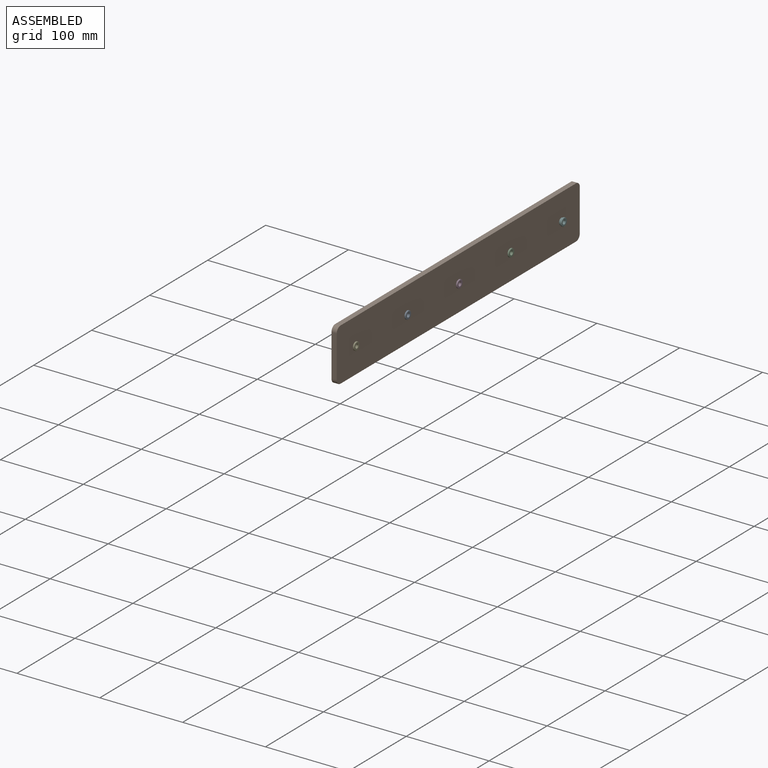
[diagram: assembled view]
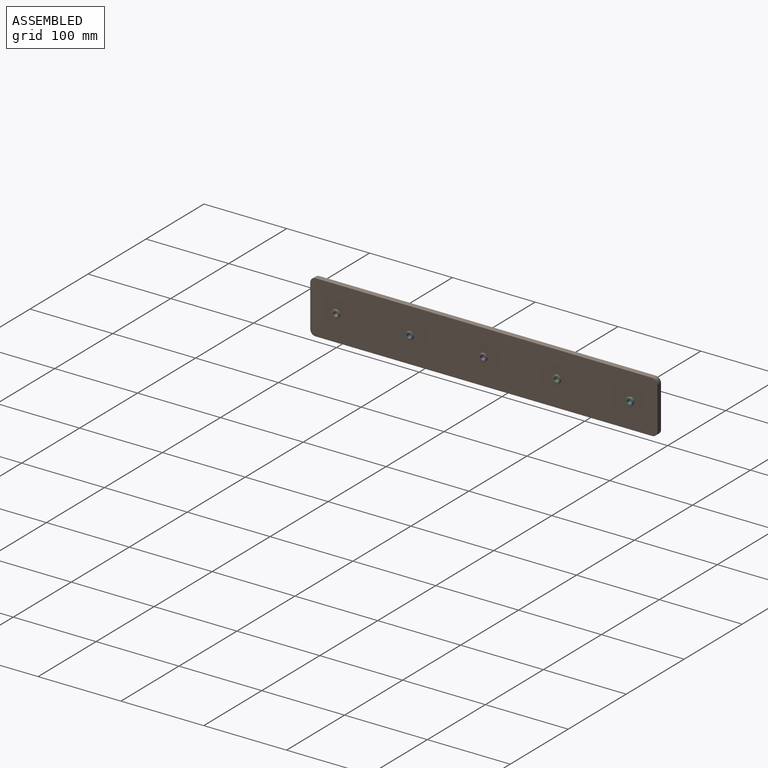
[diagram: assembled view, second angle]
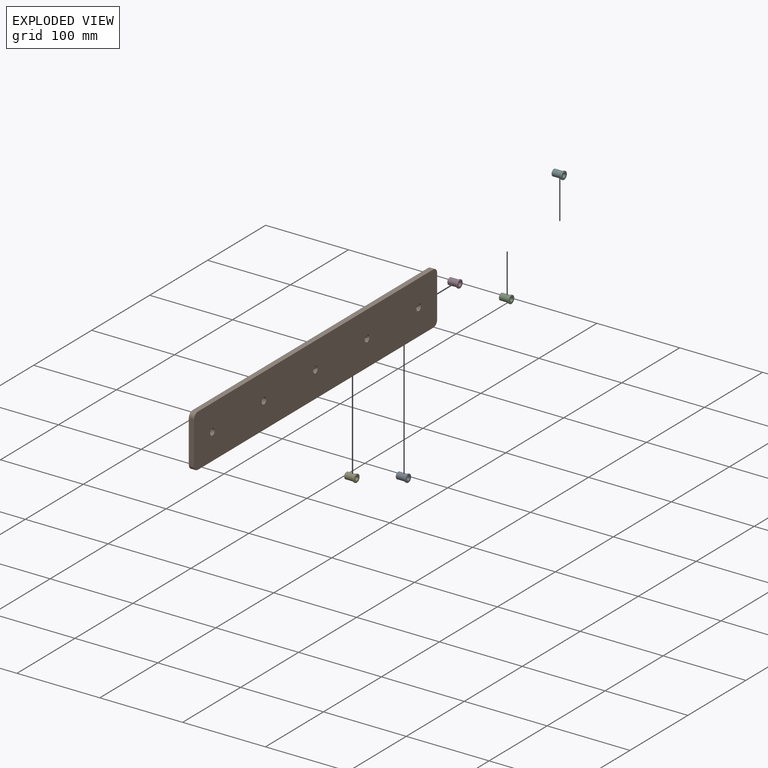
[diagram: exploded view]
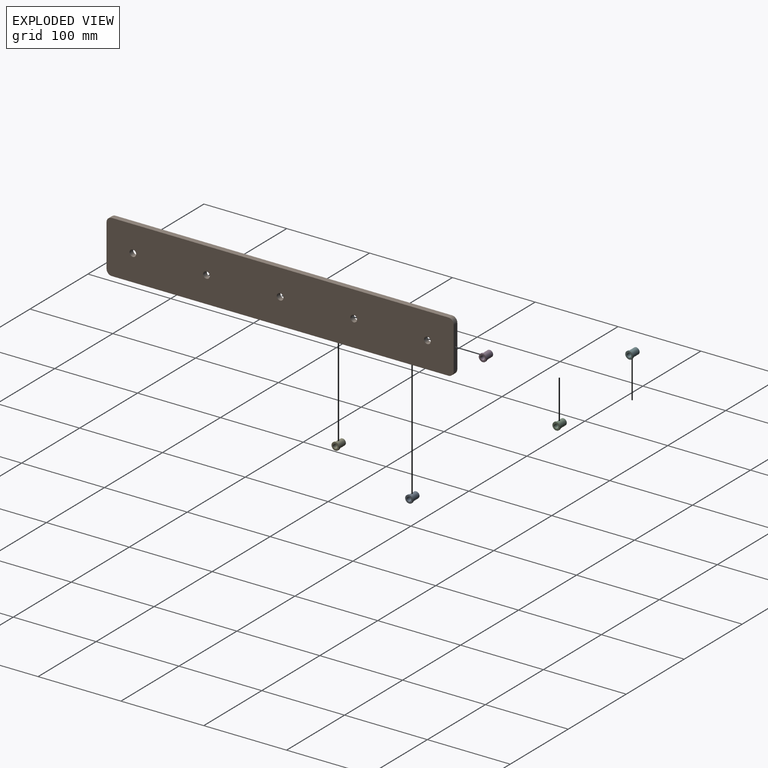
[diagram: exploded view, second angle]
ASSEMBLY  parts=6 mates=5
PART A: 17 faces, bbox 9.6x12.7x9.6 mm
  f0: cone r=0mm half-angle=45deg, axis (0,-1,0), area 4.3mm2, adj f1,f3,f4
  f1: cone r=0mm half-angle=45deg, axis (0,-1,0), area 4.3mm2, adj f0,f2,f4
  f2: cylinder r=4mm len=10.86mm, axis (0,-1,0), area 136.5mm2, adj f1,f3,f5
  f3: cylinder r=4mm len=10.86mm, axis (0,-1,0), area 136.5mm2, adj f0,f2,f5
  f4: plane 7.52x7.5mm, normal (0,1,0), area 22.5mm2, adj f0,f1,f6,f7
  f5: plane 9.58x9.56mm, normal (0,1,0), area 21.5mm2, adj f2,f3,f8,f9
  f6: cone r=0mm half-angle=45deg, axis (0,1,0), area 2.8mm2, adj f4,f7,f10
  f7: cone r=0mm half-angle=45deg, axis (0,1,0), area 2.8mm2, adj f4,f6,f11
  f8: cylinder r=4.78mm len=9.56mm, axis (0,-1,0), area 20.3mm2, adj f5,f9,f12
  f9: cylinder r=4.78mm len=9.56mm, axis (0,-1,0), area 20.3mm2, adj f5,f8,f13
  f10: cylinder r=2.38mm len=12.21mm, axis (0,-1,0), area 91.1mm2, adj f6,f11,f14
  f11: cylinder r=2.38mm len=12.21mm, axis (0,-1,0), area 91.1mm2, adj f7,f10,f15
  f12: cone r=0mm half-angle=45deg, axis (0,1,0), area 5.2mm2, adj f8,f13,f16
  f13: cone r=0mm half-angle=45deg, axis (0,1,0), area 5.2mm2, adj f9,f12,f16
  f14: cone r=0mm half-angle=45deg, axis (0,-1,0), area 2.8mm2, adj f10,f15,f16
  f15: cone r=0mm half-angle=45deg, axis (0,-1,0), area 2.8mm2, adj f11,f14,f16
  f16: plane 9.07x9.06mm, normal (0,-1,0), area 42.8mm2, adj f12,f13,f14,f15
PART B: 15 faces, bbox 6.4x419.1x63.5 mm
  f0: plane 406.4x6.35mm, normal (0,0,-1), area 2580.6mm2, adj f1,f12,f13,f14
  f1: cylinder r=6.35mm len=6.35mm, axis (-1,0,0), area 63.3mm2, adj f0,f2,f13,f14
  f2: plane 50.8x6.35mm, normal (0,1,0), area 322.6mm2, adj f1,f3,f13,f14
  f3: cylinder r=6.35mm len=6.35mm, axis (-1,0,0), area 63.3mm2, adj f2,f4,f13,f14
  f4: plane 406.4x6.35mm, normal (0,0,1), area 2580.6mm2, adj f3,f5,f13,f14
  f5: cylinder r=6.35mm len=6.35mm, axis (-1,0,0), area 63.3mm2, adj f4,f6,f13,f14
  f6: plane 50.8x6.35mm, normal (0,-1,0), area 322.6mm2, adj f5,f12,f13,f14
  f7: cylinder r=4mm len=8mm, axis (-1,0,0), area 159.6mm2, adj f13,f14
  f8: cylinder r=4mm len=8mm, axis (-1,0,0), area 159.6mm2, adj f13,f14
  f9: cylinder r=4mm len=8mm, axis (-1,0,0), area 159.6mm2, adj f13,f14
  f10: cylinder r=4mm len=8mm, axis (-1,0,0), area 159.6mm2, adj f13,f14
  f11: cylinder r=4mm len=8mm, axis (-1,0,0), area 159.6mm2, adj f13,f14
  f12: cylinder r=6.35mm len=6.35mm, axis (-1,0,0), area 63.3mm2, adj f0,f6,f13,f14
  f13: plane 419.1x63.5mm, normal (1,0,0), area 26326.9mm2, adj f0,f1,f2,f3,f4,f5,f6,f7
  f14: plane 419.1x63.5mm, normal (-1,0,0), area 26326.9mm2, adj f0,f1,f2,f3,f4,f5,f6,f7
PART C: same geometry as A
PART D: same geometry as A
PART E: same geometry as A
PART F: same geometry as A
PLACE A rot(axis=(-0.58,0.58,0.58),120deg) t=(-130.72,-123.81,6.95)mm
PLACE B t=(-139.23,-34.91,6.95)mm
PLACE C rot(axis=(-0.58,0.58,0.58),120deg) t=(-130.72,53.99,6.95)mm
PLACE D rot(axis=(-0.58,0.58,0.58),120deg) t=(-130.72,-34.91,6.95)mm
PLACE E rot(axis=(-0.58,0.58,0.58),120deg) t=(-130.72,-212.71,6.95)mm
PLACE F rot(axis=(-0.58,0.58,0.58),120deg) t=(-129.37,142.89,6.95)mm
MATE revolute D.f0 <-> B.f8  axis (1,0,0) through (-130.97,-34.91,6.95)mm
MATE revolute E.f0 <-> B.f7  axis (1,0,0) through (-130.97,-212.71,6.95)mm
MATE revolute A.f0 <-> B.f11  axis (1,0,0) through (-130.97,-123.81,6.95)mm
MATE revolute F.f0 <-> B.f10  axis (1,0,0) through (-130.97,142.89,6.95)mm
MATE revolute C.f0 <-> B.f9  axis (1,0,0) through (-130.97,53.99,6.95)mm
